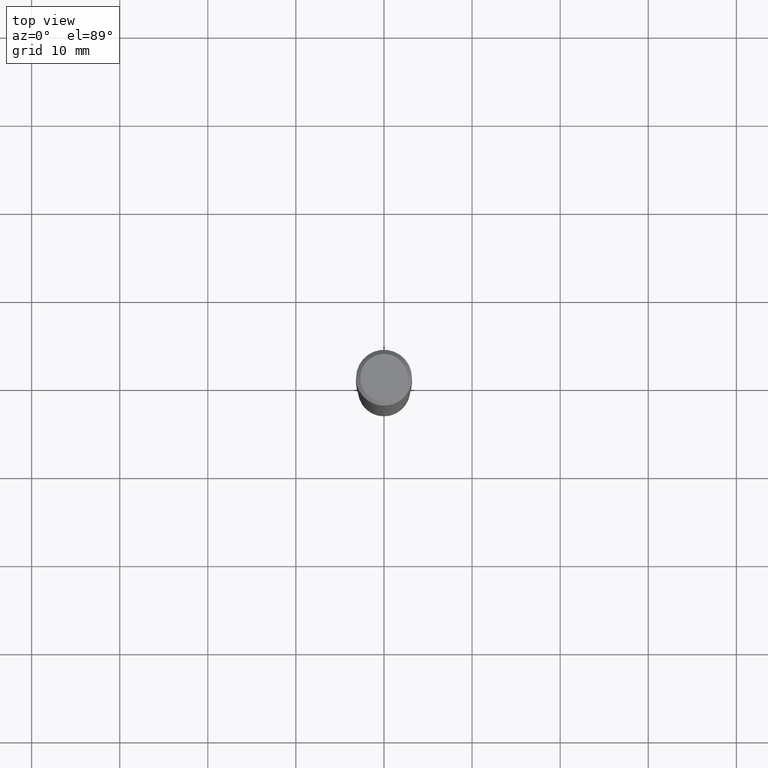
[diagram: clean part render]
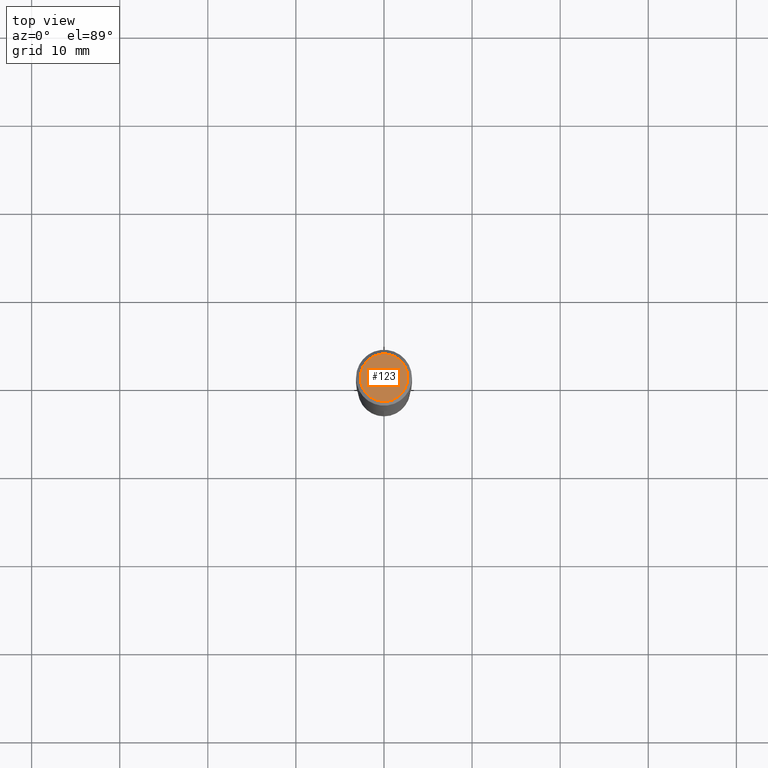
[diagram: same view with one face highlighted and labeled with its STEP entity id]
A machine part, top view. The second image highlights one B-rep face of the part: STEP entity #123.
In plain terms, the highlighted planar face has unit normal (0, -0, -1).
Its self-contained STEP definition (entity closure, byte-faithful):
#2 = EDGE_CURVE ( 'NONE', #207, #149, #48, .T. ) ;
#25 = PLANE ( 'NONE',  #454 ) ;
#28 = EDGE_LOOP ( 'NONE', ( #380, #122 ) ) ;
#48 = CIRCLE ( 'NONE', #460, 0.1062499999999999972 ) ;
#107 = CARTESIAN_POINT ( 'NONE',  ( 0.1062499999999999972, -8.259777185439879685E-16, 6.505936120475800733E-18 ) ) ;
#120 = CARTESIAN_POINT ( 'NONE',  ( -1.591006383764330940E-46, 2.271535455632768948E-32, 6.505936120470318766E-18 ) ) ;
#121 = DIRECTION ( 'NONE',  ( -2.445468806185136597E-29, 3.491481338843145583E-15, 1.000000000000000000 ) ) ;
#122 = ORIENTED_EDGE ( 'NONE', *, *, #256, .T. ) ;
#123 = ADVANCED_FACE ( 'NONE', ( #222 ), #25, .F. ) ;
#149 = VERTEX_POINT ( 'NONE', #107 ) ;
#156 = DIRECTION ( 'NONE',  ( 2.438088387897960049E-29, -3.491481338843145188E-15, -1.000000000000000000 ) ) ;
#207 = VERTEX_POINT ( 'NONE', #316 ) ;
#222 = FACE_OUTER_BOUND ( 'NONE', #28, .T. ) ;
#252 = DIRECTION ( 'NONE',  ( -2.445468806185136597E-29, 3.491481338843145583E-15, 1.000000000000000000 ) ) ;
#256 = EDGE_CURVE ( 'NONE', #149, #207, #446, .T. ) ;
#298 = AXIS2_PLACEMENT_3D ( 'NONE', #318, #252, #399 ) ;
#304 = DIRECTION ( 'NONE',  ( -1.000000000000000000, 6.982962677686265922E-15, -4.876176775795935793E-29 ) ) ;
#316 = CARTESIAN_POINT ( 'NONE',  ( -0.1062499999999999972, 7.746724220558198188E-16, 6.505936120465015526E-18 ) ) ;
#318 = CARTESIAN_POINT ( 'NONE',  ( -1.591006383764330940E-46, 2.271535455632768948E-32, 6.505936120470318766E-18 ) ) ;
#372 = CARTESIAN_POINT ( 'NONE',  ( -7.955031918821654702E-47, 1.135767727816384474E-32, 3.252968060235159383E-18 ) ) ;
#380 = ORIENTED_EDGE ( 'NONE', *, *, #2, .T. ) ;
#383 = DIRECTION ( 'NONE',  ( 1.000000000000000000, -6.982962677686266711E-15, 4.875930095424100059E-29 ) ) ;
#399 = DIRECTION ( 'NONE',  ( 1.000000000000000000, -6.982962677686266711E-15, 4.875930095424100059E-29 ) ) ;
#446 = CIRCLE ( 'NONE', #298, 0.1062499999999999972 ) ;
#454 = AXIS2_PLACEMENT_3D ( 'NONE', #372, #156, #304 ) ;
#460 = AXIS2_PLACEMENT_3D ( 'NONE', #120, #121, #383 ) ;